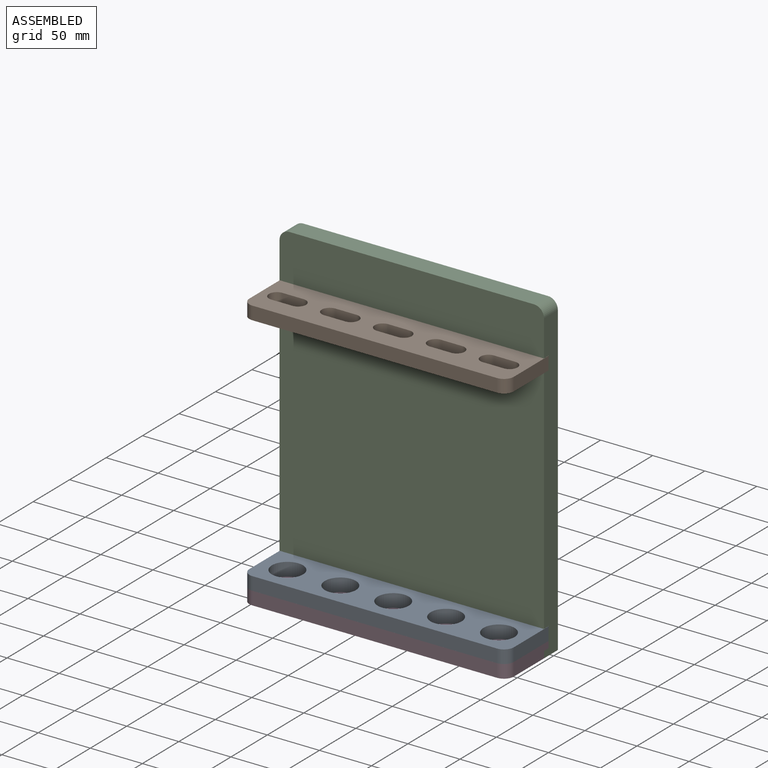
[diagram: assembled view]
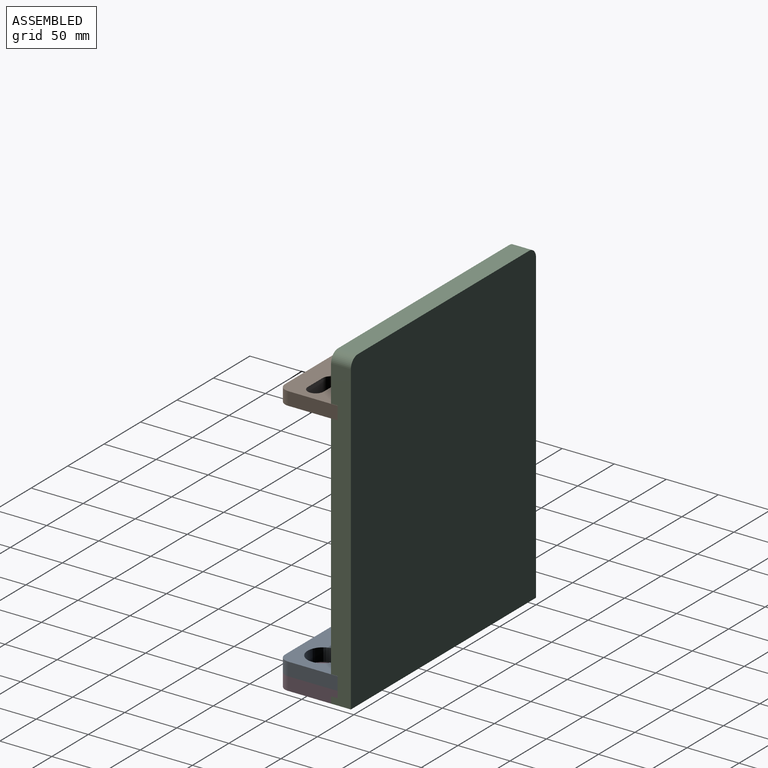
[diagram: assembled view, second angle]
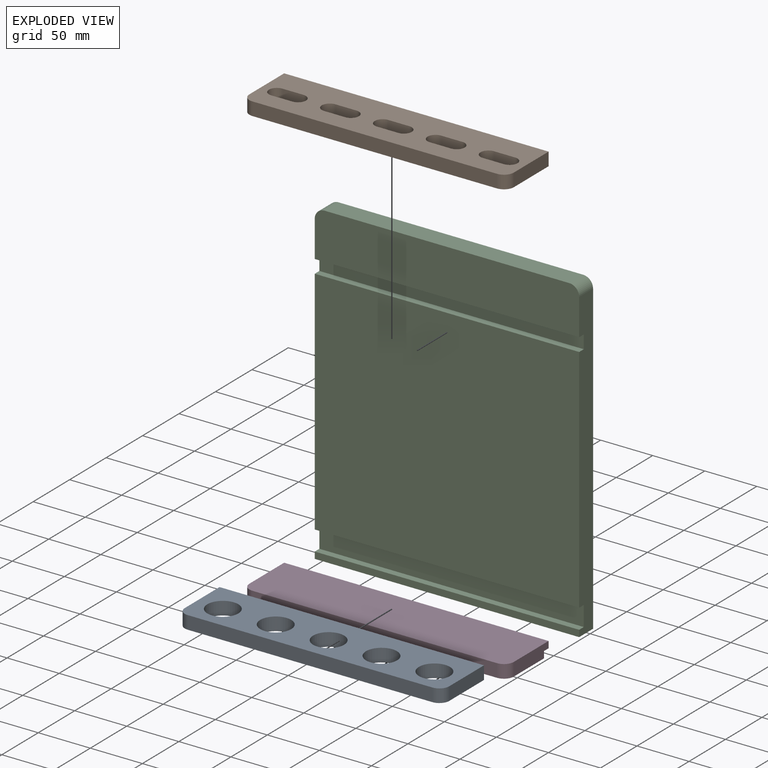
[diagram: exploded view]
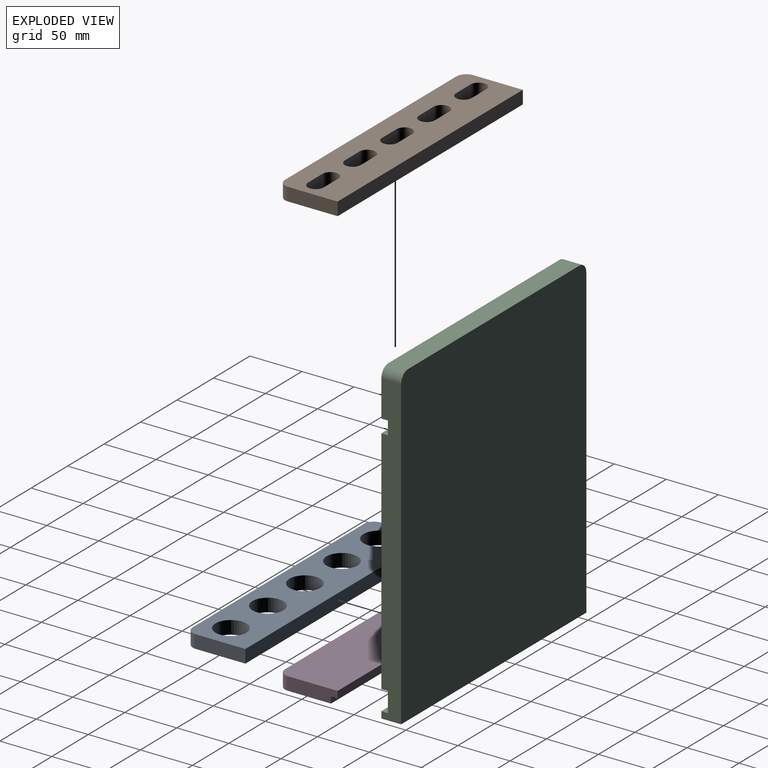
[diagram: exploded view, second angle]
ASSEMBLY  parts=4 mates=9
PART A: 13 faces, bbox 254x57.2x12.7 mm
  f0: plane 47.63x12.7mm, normal (-1,0,0), area 604.8mm2, adj f1,f4,f5,f12
  f1: plane 254x12.7mm, normal (0,-1,0), area 3225.8mm2, adj f0,f2,f4,f5
  f2: plane 47.63x12.7mm, normal (1,0,0), area 604.8mm2, adj f1,f4,f5,f11
  f3: plane 234.95x12.7mm, normal (0,1,0), area 2983.9mm2, adj f4,f5,f11,f12
  f4: plane 254x57.15mm, normal (0,0,1), area 10979.3mm2, adj f0,f1,f2,f3,f6,f7,f8,f9
  f5: plane 254x57.15mm, normal (0,0,-1), area 10979.3mm2, adj f0,f1,f2,f3,f6,f7,f8,f9
  f6: cylinder r=14.92mm len=29.85mm, axis (0,0,1), area 1190.8mm2, adj f4,f5
  f7: cylinder r=14.92mm len=29.85mm, axis (0,0,1), area 1190.8mm2, adj f4,f5
  f8: cylinder r=14.92mm len=29.85mm, axis (0,0,1), area 1190.8mm2, adj f4,f5
  f9: cylinder r=14.92mm len=29.85mm, axis (0,0,1), area 1190.8mm2, adj f4,f5
  f10: cylinder r=14.92mm len=29.85mm, axis (0,0,1), area 1190.8mm2, adj f4,f5
  f11: cylinder r=9.53mm len=12.7mm, axis (0,0,1), area 190mm2, adj f2,f3,f4,f5
  f12: cylinder r=9.53mm len=12.7mm, axis (0,0,-1), area 190mm2, adj f0,f3,f4,f5
PART B: 28 faces, bbox 254x57.2x12.7 mm
  f0: plane 20.32x12.7mm, normal (0,-1,0), area 258.1mm2, adj f1,f3,f20,f21
  f1: cylinder r=7.62mm len=15.24mm, axis (0,0,1), area 304mm2, adj f0,f2,f20,f21
  f2: plane 20.32x12.7mm, normal (0,1,0), area 258.1mm2, adj f1,f3,f20,f21
  f3: cylinder r=7.62mm len=15.24mm, axis (0,0,1), area 304mm2, adj f0,f2,f20,f21
  f4: plane 20.32x12.7mm, normal (0,-1,0), area 258.1mm2, adj f5,f7,f20,f21
  f5: cylinder r=7.62mm len=15.24mm, axis (0,0,1), area 304mm2, adj f4,f6,f20,f21
  f6: plane 20.32x12.7mm, normal (0,1,0), area 258.1mm2, adj f5,f7,f20,f21
  f7: cylinder r=7.62mm len=15.24mm, axis (0,0,1), area 304mm2, adj f4,f6,f20,f21
  f8: plane 20.32x12.7mm, normal (0,-1,0), area 258.1mm2, adj f9,f11,f20,f21
  f9: cylinder r=7.62mm len=15.24mm, axis (0,0,1), area 304mm2, adj f8,f10,f20,f21
  f10: plane 20.32x12.7mm, normal (0,1,0), area 258.1mm2, adj f9,f11,f20,f21
  f11: cylinder r=7.62mm len=15.24mm, axis (0,0,1), area 304mm2, adj f8,f10,f20,f21
  f12: plane 20.32x12.7mm, normal (0,-1,0), area 258.1mm2, adj f13,f15,f20,f21
  f13: cylinder r=7.62mm len=15.24mm, axis (0,0,1), area 304mm2, adj f12,f14,f20,f21
  f14: plane 20.32x12.7mm, normal (0,1,0), area 258.1mm2, adj f13,f15,f20,f21
  f15: cylinder r=7.62mm len=15.24mm, axis (0,0,1), area 304mm2, adj f12,f14,f20,f21
  f16: plane 47.63x12.7mm, normal (-1,0,0), area 604.8mm2, adj f17,f20,f21,f23
  f17: plane 254x12.7mm, normal (0,-1,0), area 3225.8mm2, adj f16,f18,f20,f21
  f18: plane 47.63x12.7mm, normal (1,0,0), area 604.8mm2, adj f17,f20,f21,f22
  f19: plane 234.95x12.7mm, normal (0,1,0), area 2983.9mm2, adj f20,f21,f22,f23
  f20: plane 254x57.15mm, normal (0,0,1), area 12016.7mm2, adj f0,f1,f2,f3,f4,f5,f6,f7
  f21: plane 254x57.15mm, normal (0,0,-1), area 12016.7mm2, adj f0,f1,f2,f3,f4,f5,f6,f7
  f22: cylinder r=9.53mm len=12.7mm, axis (0,0,1), area 190mm2, adj f18,f19,f20,f21
  f23: cylinder r=9.53mm len=12.7mm, axis (0,0,-1), area 190mm2, adj f16,f19,f20,f21
  f24: plane 20.32x12.7mm, normal (0,-1,0), area 258.1mm2, adj f20,f21,f25,f27
  f25: cylinder r=7.62mm len=15.24mm, axis (0,0,1), area 304mm2, adj f20,f21,f24,f26
  f26: plane 20.32x12.7mm, normal (0,1,0), area 258.1mm2, adj f20,f21,f25,f27
  f27: cylinder r=7.62mm len=15.24mm, axis (0,0,1), area 304mm2, adj f20,f21,f24,f26
PART C: 16 faces, bbox 254x19.1x304.8 mm
  f0: plane 254x222mm, normal (0,-1,0), area 56387mm2, adj f2,f4,f8,f12
  f1: plane 254x44.45mm, normal (0,-1,0), area 11251.4mm2, adj f2,f4,f5,f9,f14,f15
  f2: plane 295.28x19.05mm, normal (-1,0,0), area 5421.8mm2, adj f0,f1,f3,f6,f7,f8,f9,f10
  f3: plane 254x19.05mm, normal (0,0,-1), area 4838.7mm2, adj f2,f4,f6,f7
  f4: plane 295.28x19.05mm, normal (1,0,0), area 5421.8mm2, adj f0,f1,f3,f6,f7,f8,f9,f10
  f5: plane 234.95x19.05mm, normal (0,0,1), area 4475.8mm2, adj f1,f7,f14,f15
  f6: plane 254x6.35mm, normal (0,-1,0), area 1612.9mm2, adj f2,f3,f4,f11
  f7: plane 304.8x254mm, normal (0,1,0), area 77380.3mm2, adj f2,f3,f4,f5,f14,f15
  f8: plane 254x6.35mm, normal (0,0,1), area 1612.9mm2, adj f0,f2,f4,f10
  f9: plane 254x6.35mm, normal (0,0,-1), area 1612.9mm2, adj f1,f2,f4,f10
  f10: plane 254x12.83mm, normal (0,-1,0), area 3258.1mm2, adj f2,f4,f8,f9
  f11: plane 254x6.35mm, normal (0,0,1), area 1612.9mm2, adj f2,f4,f6,f13
  f12: plane 254x6.35mm, normal (0,0,-1), area 1612.9mm2, adj f0,f2,f4,f13
  f13: plane 254x19.18mm, normal (0,-1,0), area 4871mm2, adj f2,f4,f11,f12
  f14: cylinder r=9.53mm len=19.05mm, axis (0,-1,0), area 285mm2, adj f1,f4,f5,f7
  f15: cylinder r=9.53mm len=19.05mm, axis (0,1,0), area 285mm2, adj f1,f2,f5,f7
PART D: 10 faces, bbox 254x57.2x12.7 mm
  f0: plane 47.63x12.7mm, normal (-1,0,0), area 564.5mm2, adj f3,f4,f5,f6,f8,f9
  f1: plane 234.95x12.7mm, normal (0,-1,0), area 2983.9mm2, adj f4,f5,f6,f7
  f2: plane 47.63x12.7mm, normal (1,0,0), area 564.5mm2, adj f3,f4,f5,f7,f8,f9
  f3: plane 254x6.35mm, normal (0,1,0), area 1612.9mm2, adj f0,f2,f4,f9
  f4: plane 254x57.15mm, normal (0,0,1), area 14477.2mm2, adj f0,f1,f2,f3,f6,f7
  f5: plane 254x50.8mm, normal (0,0,-1), area 12864.3mm2, adj f0,f1,f2,f6,f7,f8
  f6: cylinder r=9.53mm len=12.7mm, axis (0,0,1), area 190mm2, adj f0,f1,f4,f5
  f7: cylinder r=9.53mm len=12.7mm, axis (0,0,-1), area 190mm2, adj f1,f2,f4,f5
  f8: plane 254x6.35mm, normal (0,1,0), area 1612.9mm2, adj f0,f2,f5,f9
  f9: plane 254x6.35mm, normal (0,0,-1), area 1612.9mm2, adj f0,f2,f3,f8
PLACE A rot(axis=(0,0,1),180deg) t=(254,-12.7,12.7)mm
PLACE B rot(axis=(0,0,1),180deg) t=(254,-12.7,247.52)mm
PLACE C at identity fixed
PLACE D t=(0,-69.85,0)mm
MATE planar C.f13 <-> D.f3  axis (0,-1,0) through (127,-12.7,15.94)mm
MATE planar B.f21 <-> C.f8  axis (0,0,-1) through (127,-40.54,247.52)mm
MATE planar D.f2 <-> C.f4  axis (1,0,0) through (254,-37.99,6.58)mm
MATE planar A.f1 <-> C.f13  axis (0,1,0) through (127,-12.7,19.05)mm
MATE planar A.f5 <-> D.f4  axis (0,0,-1) through (127,-40.17,12.7)mm
MATE planar D.f5 <-> C.f3  axis (0,0,-1) through (127,-44.38,0)mm
MATE planar B.f16 <-> C.f4  axis (1,0,0) through (254,-36.51,253.87)mm
MATE planar B.f17 <-> C.f10  axis (0,1,0) through (127,-12.7,253.87)mm
MATE planar A.f0 <-> C.f4  axis (1,0,0) through (254,-36.51,19.05)mm
